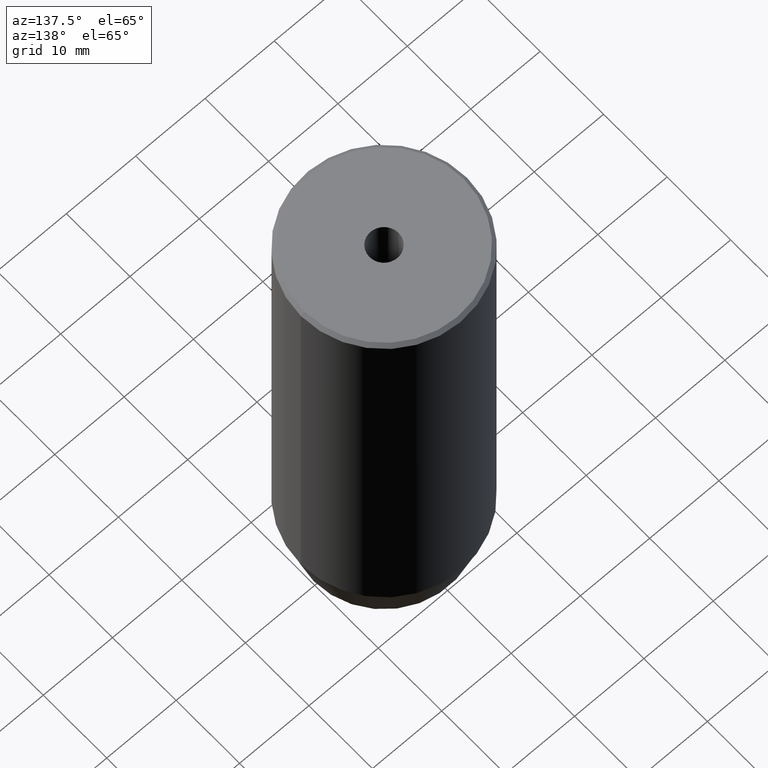
[diagram: clean part render]
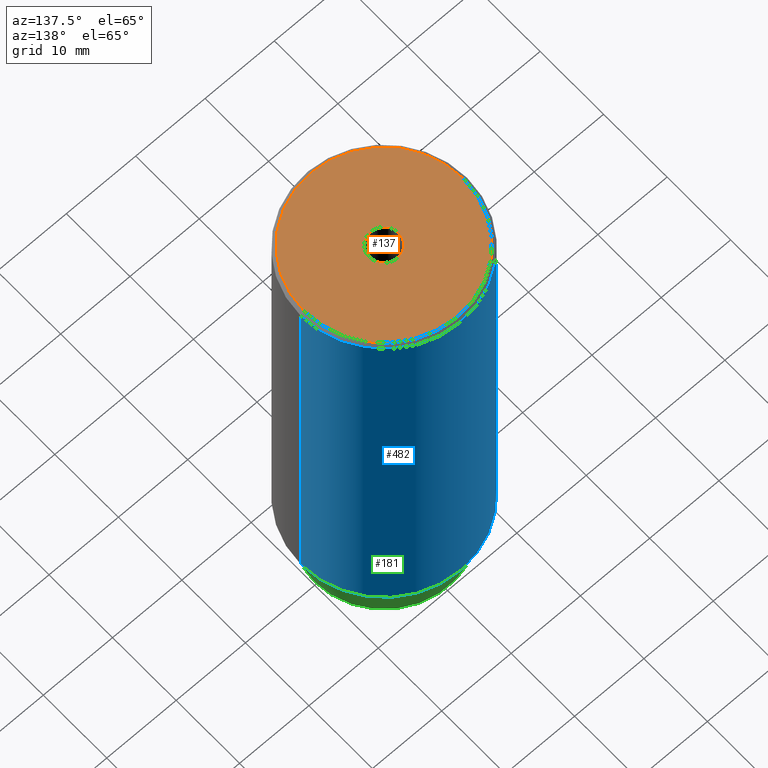
[diagram: same view with three faces highlighted in distinct colors, each labeled with its STEP entity id]
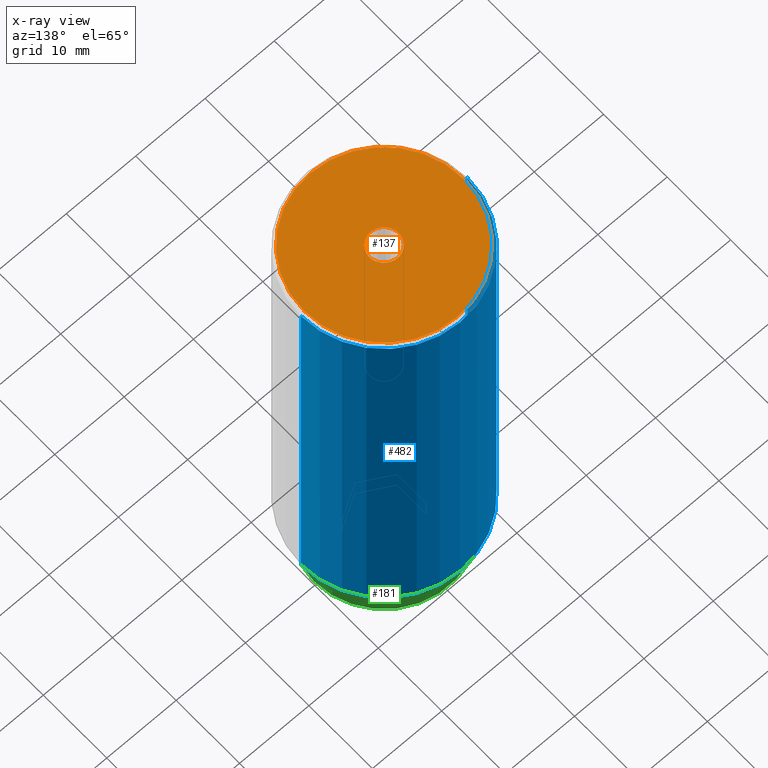
[diagram: x-ray of the same camera — body ghosted, the three highlighted faces saturated]
A machine part, auxiliary view with three faces highlighted in distinct colors.
The next image is the same camera in x-ray (body ghosted, the three faces saturated) — at least one of them is partly hidden behind the body in this view.
Their STEP definitions:

[orange] entity #137 — the highlighted planar face has unit normal (0, -0, 1).
#6 = AXIS2_PLACEMENT_3D ( 'NONE', #349, #426, #298 ) ;
#10 = FACE_OUTER_BOUND ( 'NONE', #42, .T. ) ;
#11 = DIRECTION ( 'NONE',  ( 1.000000000000000000, 0.000000000000000000, 0.000000000000000000 ) ) ;
#17 = ORIENTED_EDGE ( 'NONE', *, *, #55, .T. ) ;
#42 = EDGE_LOOP ( 'NONE', ( #439, #17 ) ) ;
#48 = CARTESIAN_POINT ( 'NONE',  ( -11.50000000000000888, 0.000000000000000000, 0.000000000000000000 ) ) ;
#49 = DIRECTION ( 'NONE',  ( 1.000000000000000000, 0.000000000000000000, 0.000000000000000000 ) ) ;
#55 = EDGE_CURVE ( 'NONE', #250, #146, #107, .T. ) ;
#65 = VERTEX_POINT ( 'NONE', #71 ) ;
#71 = CARTESIAN_POINT ( 'NONE',  ( 2.099999999999998757, 0.000000000000000000, -1.990051048614449116E-16 ) ) ;
#72 = CIRCLE ( 'NONE', #395, 11.50000000000000888 ) ;
#85 = CARTESIAN_POINT ( 'NONE',  ( 0.000000000000000000, 0.000000000000000000, 0.000000000000000000 ) ) ;
#88 = DIRECTION ( 'NONE',  ( -0.000000000000000000, -0.000000000000000000, 1.000000000000000000 ) ) ;
#89 = PLANE ( 'NONE',  #229 ) ;
#93 = DIRECTION ( 'NONE',  ( -0.000000000000000000, -0.000000000000000000, 1.000000000000000000 ) ) ;
#107 = CIRCLE ( 'NONE', #6, 11.50000000000000888 ) ;
#122 = CIRCLE ( 'NONE', #572, 2.099999999999998757 ) ;
#137 = ADVANCED_FACE ( 'NONE', ( #502, #10 ), #89, .T. ) ;
#146 = VERTEX_POINT ( 'NONE', #48 ) ;
#156 = EDGE_CURVE ( 'NONE', #542, #65, #510, .T. ) ;
#162 = CARTESIAN_POINT ( 'NONE',  ( -2.099999999999998757, 2.571758278209440478E-16, -1.990051048614449116E-16 ) ) ;
#167 = EDGE_CURVE ( 'NONE', #146, #250, #72, .T. ) ;
#176 = CARTESIAN_POINT ( 'NONE',  ( 0.000000000000000000, 0.000000000000000000, -1.990051048614449116E-16 ) ) ;
#204 = EDGE_LOOP ( 'NONE', ( #377, #524 ) ) ;
#229 = AXIS2_PLACEMENT_3D ( 'NONE', #508, #403, #11 ) ;
#250 = VERTEX_POINT ( 'NONE', #515 ) ;
#262 = DIRECTION ( 'NONE',  ( 1.000000000000000000, 0.000000000000000000, 0.000000000000000000 ) ) ;
#298 = DIRECTION ( 'NONE',  ( 1.000000000000000000, 0.000000000000000000, 0.000000000000000000 ) ) ;
#313 = AXIS2_PLACEMENT_3D ( 'NONE', #176, #93, #407 ) ;
#347 = DIRECTION ( 'NONE',  ( -0.000000000000000000, -0.000000000000000000, 1.000000000000000000 ) ) ;
#349 = CARTESIAN_POINT ( 'NONE',  ( 0.000000000000000000, 0.000000000000000000, 0.000000000000000000 ) ) ;
#377 = ORIENTED_EDGE ( 'NONE', *, *, #451, .F. ) ;
#395 = AXIS2_PLACEMENT_3D ( 'NONE', #85, #88, #49 ) ;
#403 = DIRECTION ( 'NONE',  ( 0.000000000000000000, -0.000000000000000000, 1.000000000000000000 ) ) ;
#407 = DIRECTION ( 'NONE',  ( 1.000000000000000000, 0.000000000000000000, 0.000000000000000000 ) ) ;
#426 = DIRECTION ( 'NONE',  ( -0.000000000000000000, -0.000000000000000000, 1.000000000000000000 ) ) ;
#432 = CARTESIAN_POINT ( 'NONE',  ( 0.000000000000000000, 0.000000000000000000, -1.990051048614449116E-16 ) ) ;
#439 = ORIENTED_EDGE ( 'NONE', *, *, #167, .T. ) ;
#451 = EDGE_CURVE ( 'NONE', #65, #542, #122, .T. ) ;
#502 = FACE_BOUND ( 'NONE', #204, .T. ) ;
#508 = CARTESIAN_POINT ( 'NONE',  ( 0.000000000000000000, 0.000000000000000000, 0.000000000000000000 ) ) ;
#510 = CIRCLE ( 'NONE', #313, 2.099999999999998757 ) ;
#515 = CARTESIAN_POINT ( 'NONE',  ( 11.50000000000000888, 1.438959988998140752E-15, 0.000000000000000000 ) ) ;
#524 = ORIENTED_EDGE ( 'NONE', *, *, #156, .F. ) ;
#542 = VERTEX_POINT ( 'NONE', #162 ) ;
#572 = AXIS2_PLACEMENT_3D ( 'NONE', #432, #347, #262 ) ;

[blue] entity #482 — the highlighted cylindrical surface (partial cylindrical patch) has radius 12 mm, axis along (-0, -0, 1).
#1 = EDGE_LOOP ( 'NONE', ( #370, #400, #61, #119 ) ) ;
#19 = VERTEX_POINT ( 'NONE', #209 ) ;
#31 = LINE ( 'NONE', #160, #547 ) ;
#47 = EDGE_CURVE ( 'NONE', #382, #216, #31, .T. ) ;
#60 = CARTESIAN_POINT ( 'NONE',  ( -12.00000000000000000, 1.469576158976823947E-15, -63.00000000000000000 ) ) ;
#61 = ORIENTED_EDGE ( 'NONE', *, *, #62, .T. ) ;
#62 = EDGE_CURVE ( 'NONE', #19, #216, #582, .T. ) ;
#76 = CIRCLE ( 'NONE', #529, 12.00000000000000000 ) ;
#77 = CYLINDRICAL_SURFACE ( 'NONE', #541, 12.00000000000000000 ) ;
#119 = ORIENTED_EDGE ( 'NONE', *, *, #47, .F. ) ;
#148 = CARTESIAN_POINT ( 'NONE',  ( 12.00000000000000000, 0.000000000000000000, -63.00000000000000000 ) ) ;
#158 = FACE_OUTER_BOUND ( 'NONE', #1, .T. ) ;
#160 = CARTESIAN_POINT ( 'NONE',  ( 12.00000000000000000, 0.000000000000000000, 0.000000000000000000 ) ) ;
#209 = CARTESIAN_POINT ( 'NONE',  ( -12.00000000000000000, 1.469576158976823947E-15, -0.4999999999999917843 ) ) ;
#216 = VERTEX_POINT ( 'NONE', #401 ) ;
#259 = CARTESIAN_POINT ( 'NONE',  ( 0.000000000000000000, 0.000000000000000000, 0.000000000000000000 ) ) ;
#276 = CARTESIAN_POINT ( 'NONE',  ( -12.00000000000000000, 1.469576158976823947E-15, 0.000000000000000000 ) ) ;
#287 = CARTESIAN_POINT ( 'NONE',  ( 0.000000000000000000, 0.000000000000000000, -63.00000000000000000 ) ) ;
#291 = DIRECTION ( 'NONE',  ( 1.000000000000000000, 0.000000000000000000, 0.000000000000000000 ) ) ;
#319 = EDGE_CURVE ( 'NONE', #348, #19, #564, .T. ) ;
#335 = DIRECTION ( 'NONE',  ( -0.000000000000000000, -0.000000000000000000, 1.000000000000000000 ) ) ;
#340 = DIRECTION ( 'NONE',  ( 1.000000000000000000, 0.000000000000000000, 0.000000000000000000 ) ) ;
#348 = VERTEX_POINT ( 'NONE', #60 ) ;
#366 = DIRECTION ( 'NONE',  ( -0.000000000000000000, -0.000000000000000000, 1.000000000000000000 ) ) ;
#370 = ORIENTED_EDGE ( 'NONE', *, *, #397, .T. ) ;
#378 = DIRECTION ( 'NONE',  ( -0.000000000000000000, -0.000000000000000000, 1.000000000000000000 ) ) ;
#382 = VERTEX_POINT ( 'NONE', #148 ) ;
#391 = DIRECTION ( 'NONE',  ( -0.000000000000000000, -0.000000000000000000, 1.000000000000000000 ) ) ;
#397 = EDGE_CURVE ( 'NONE', #382, #348, #76, .T. ) ;
#400 = ORIENTED_EDGE ( 'NONE', *, *, #319, .T. ) ;
#401 = CARTESIAN_POINT ( 'NONE',  ( 12.00000000000000000, 0.000000000000000000, -0.4999999999999917843 ) ) ;
#440 = DIRECTION ( 'NONE',  ( 1.000000000000000000, 0.000000000000000000, 0.000000000000000000 ) ) ;
#441 = AXIS2_PLACEMENT_3D ( 'NONE', #481, #535, #440 ) ;
#445 = VECTOR ( 'NONE', #366, 1000.000000000000000 ) ;
#481 = CARTESIAN_POINT ( 'NONE',  ( 0.000000000000000000, 0.000000000000000000, -0.4999999999999917843 ) ) ;
#482 = ADVANCED_FACE ( 'NONE', ( #158 ), #77, .T. ) ;
#529 = AXIS2_PLACEMENT_3D ( 'NONE', #287, #335, #340 ) ;
#535 = DIRECTION ( 'NONE',  ( 0.000000000000000000, 0.000000000000000000, -1.000000000000000000 ) ) ;
#541 = AXIS2_PLACEMENT_3D ( 'NONE', #259, #378, #291 ) ;
#547 = VECTOR ( 'NONE', #391, 1000.000000000000000 ) ;
#564 = LINE ( 'NONE', #276, #445 ) ;
#582 = CIRCLE ( 'NONE', #441, 12.00000000000000000 ) ;

[green] entity #181 — the highlighted conical surface has half-angle 15 deg.
#7 = CARTESIAN_POINT ( 'NONE',  ( -10.12435565298213547, 1.354726066681111050E-15, -70.00000000000000000 ) ) ;
#45 = DIRECTION ( 'NONE',  ( 1.000000000000000000, 0.000000000000000000, 0.000000000000000000 ) ) ;
#58 = CARTESIAN_POINT ( 'NONE',  ( 12.00000000000000000, 0.000000000000000000, -63.00000000000000000 ) ) ;
#60 = CARTESIAN_POINT ( 'NONE',  ( -12.00000000000000000, 1.469576158976823947E-15, -63.00000000000000000 ) ) ;
#76 = CIRCLE ( 'NONE', #529, 12.00000000000000000 ) ;
#103 = DIRECTION ( 'NONE',  ( -0.2588190451025213501, 3.169619151431772337E-17, 0.9659258262890680902 ) ) ;
#110 = VECTOR ( 'NONE', #240, 1000.000000000000000 ) ;
#123 = CARTESIAN_POINT ( 'NONE',  ( 10.12435565298213547, 0.000000000000000000, -70.00000000000000000 ) ) ;
#148 = CARTESIAN_POINT ( 'NONE',  ( 12.00000000000000000, 0.000000000000000000, -63.00000000000000000 ) ) ;
#154 = ORIENTED_EDGE ( 'NONE', *, *, #397, .F. ) ;
#181 = ADVANCED_FACE ( 'NONE', ( #353 ), #280, .T. ) ;
#182 = AXIS2_PLACEMENT_3D ( 'NONE', #372, #232, #185 ) ;
#185 = DIRECTION ( 'NONE',  ( 1.000000000000000000, 0.000000000000000000, 0.000000000000000000 ) ) ;
#190 = CARTESIAN_POINT ( 'NONE',  ( -12.00000000000000000, 1.469576158976823947E-15, -63.00000000000000000 ) ) ;
#230 = VERTEX_POINT ( 'NONE', #7 ) ;
#231 = AXIS2_PLACEMENT_3D ( 'NONE', #554, #402, #45 ) ;
#232 = DIRECTION ( 'NONE',  ( -0.000000000000000000, -0.000000000000000000, 1.000000000000000000 ) ) ;
#240 = DIRECTION ( 'NONE',  ( 0.2588190451025213501, 0.000000000000000000, 0.9659258262890680902 ) ) ;
#269 = EDGE_CURVE ( 'NONE', #488, #230, #419, .T. ) ;
#280 = CONICAL_SURFACE ( 'NONE', #231, 12.00000000000000000, 0.2617993877991500740 ) ;
#281 = LINE ( 'NONE', #58, #110 ) ;
#287 = CARTESIAN_POINT ( 'NONE',  ( 0.000000000000000000, 0.000000000000000000, -63.00000000000000000 ) ) ;
#290 = EDGE_CURVE ( 'NONE', #488, #382, #281, .T. ) ;
#294 = VECTOR ( 'NONE', #103, 1000.000000000000000 ) ;
#302 = ORIENTED_EDGE ( 'NONE', *, *, #363, .T. ) ;
#324 = LINE ( 'NONE', #190, #294 ) ;
#335 = DIRECTION ( 'NONE',  ( -0.000000000000000000, -0.000000000000000000, 1.000000000000000000 ) ) ;
#340 = DIRECTION ( 'NONE',  ( 1.000000000000000000, 0.000000000000000000, 0.000000000000000000 ) ) ;
#348 = VERTEX_POINT ( 'NONE', #60 ) ;
#353 = FACE_OUTER_BOUND ( 'NONE', #375, .T. ) ;
#363 = EDGE_CURVE ( 'NONE', #230, #348, #324, .T. ) ;
#372 = CARTESIAN_POINT ( 'NONE',  ( 0.000000000000000000, 0.000000000000000000, -70.00000000000000000 ) ) ;
#375 = EDGE_LOOP ( 'NONE', ( #416, #302, #154, #570 ) ) ;
#382 = VERTEX_POINT ( 'NONE', #148 ) ;
#397 = EDGE_CURVE ( 'NONE', #382, #348, #76, .T. ) ;
#402 = DIRECTION ( 'NONE',  ( -0.000000000000000000, -0.000000000000000000, 1.000000000000000000 ) ) ;
#416 = ORIENTED_EDGE ( 'NONE', *, *, #269, .T. ) ;
#419 = CIRCLE ( 'NONE', #182, 10.12435565298213547 ) ;
#488 = VERTEX_POINT ( 'NONE', #123 ) ;
#529 = AXIS2_PLACEMENT_3D ( 'NONE', #287, #335, #340 ) ;
#554 = CARTESIAN_POINT ( 'NONE',  ( 0.000000000000000000, 0.000000000000000000, -63.00000000000000000 ) ) ;
#570 = ORIENTED_EDGE ( 'NONE', *, *, #290, .F. ) ;